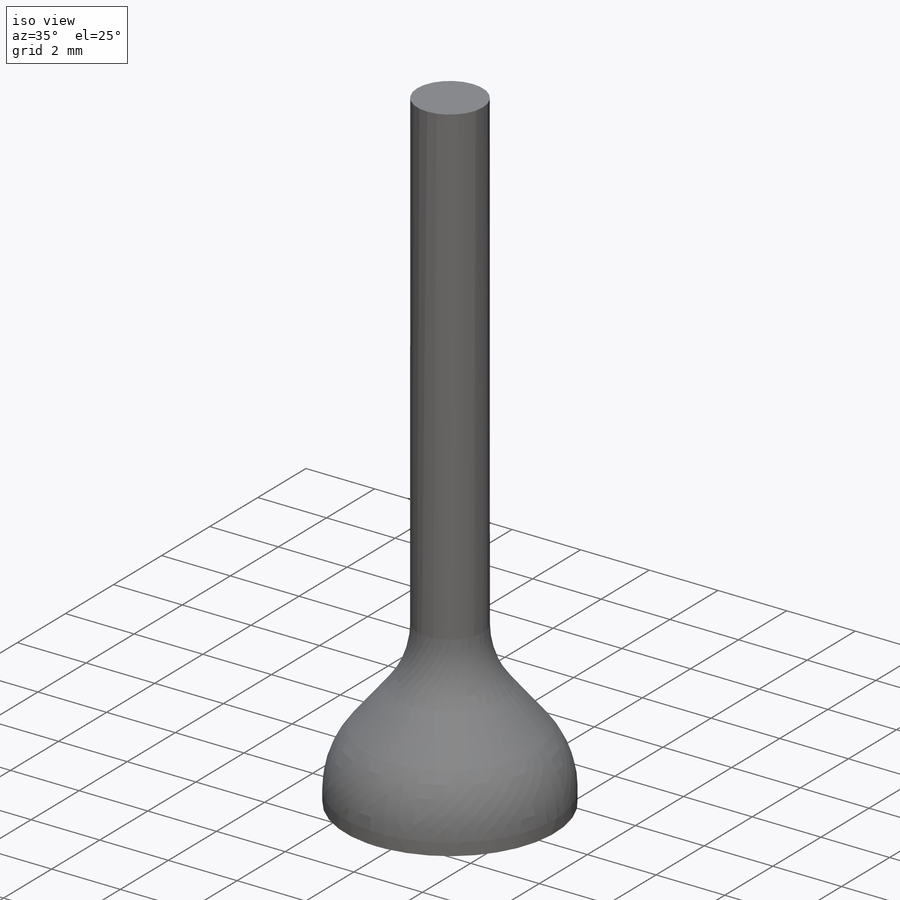
[diagram: iso view]
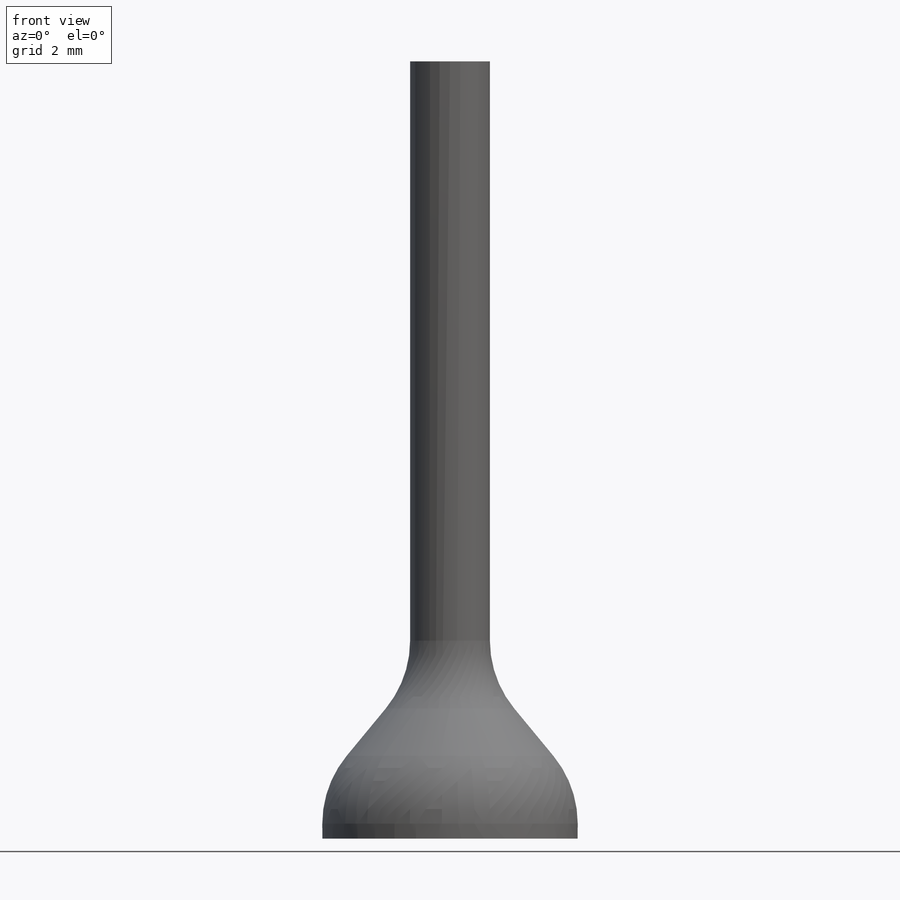
[diagram: front view]
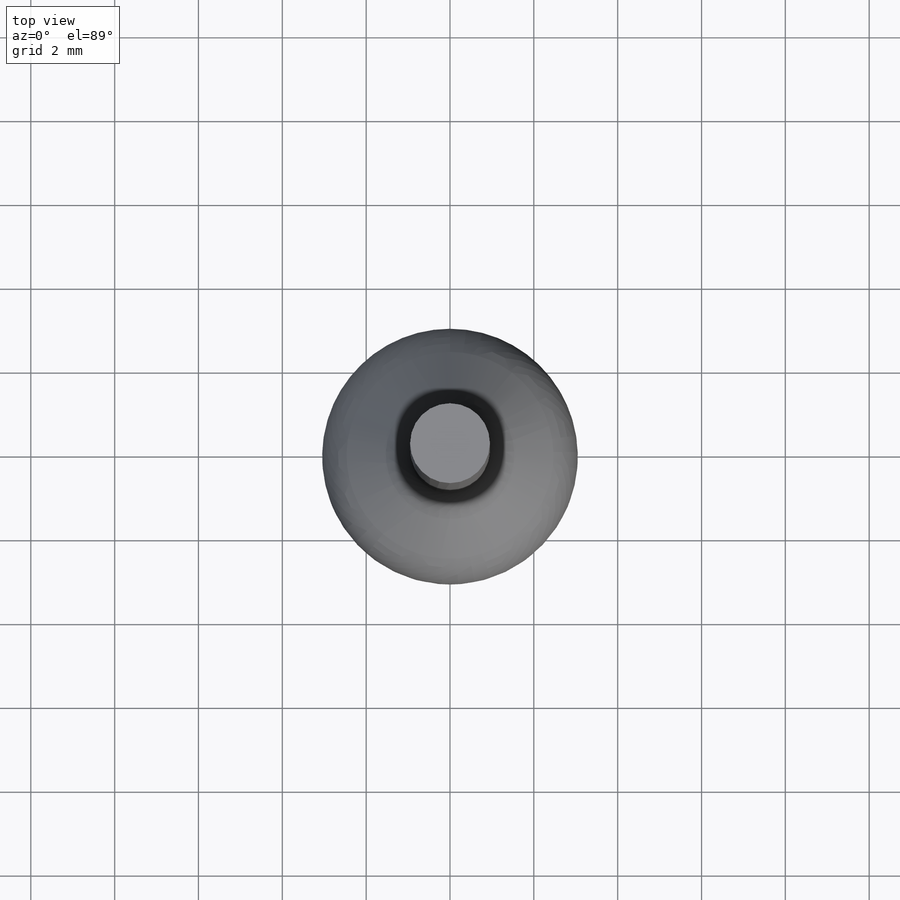
[diagram: top view]
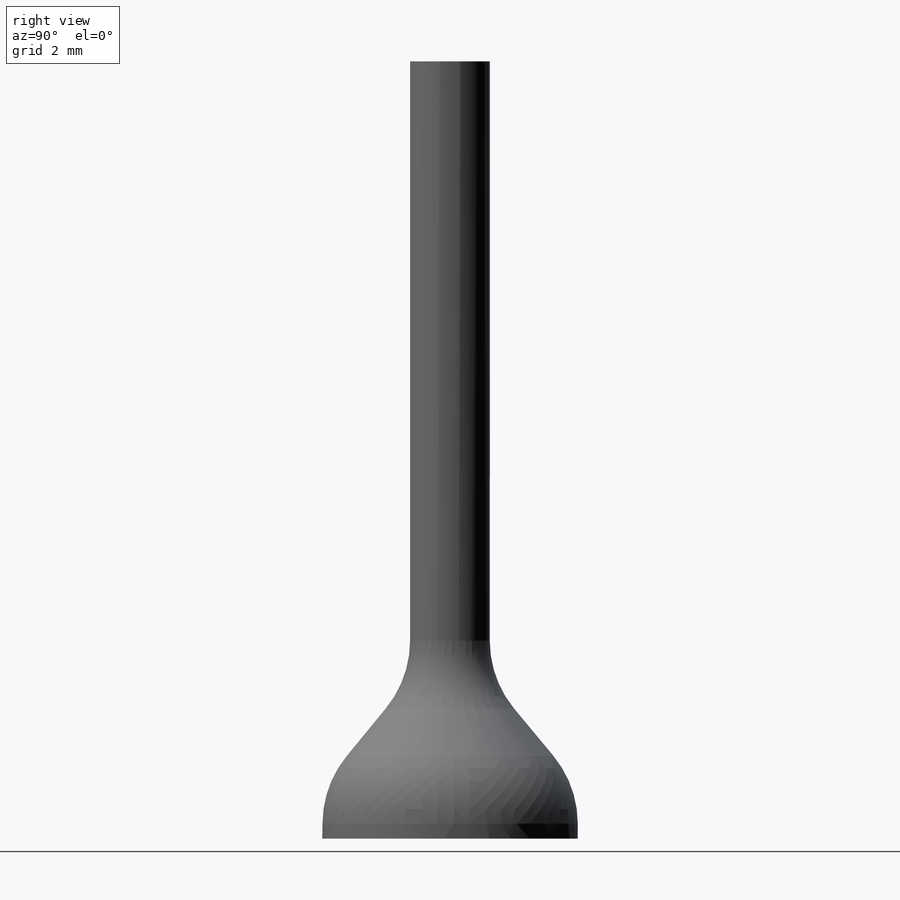
[diagram: right view]
SOLIDWORKS PART (.sldprt)
format: sldprt  version: not decoded by parser v0  size: 157,696 bytes
history: native  units: mm
features: sketch x3, extrude x2, material x1, plane x1, fillet x1 (+13 scaffold rows collapsed)
feature tree (21):
  scaffold x13  (default folders/planes/origin — collapsed)
  material  "Material <not specified>"
  sketch  "Sketch1"  dims[D1=~11.466038mm]
  extrude  "Boss-Extrude1"  Depth=1.27mm
  plane  "Plane1"  Offset=2.54mm
  sketch  "Sketch2"  dims[D1=~1.643114mm]
  sketch  "Sketch3"
  extrude  "Boss-Extrude2"  Depth=14.732mm
  fillet  "Fillet1"  Radius=2.54mm
decode coverage: 5 of 6 modeling features carry decoded parameters
note: ~ marks probable driven/reference dimensions
note: suppression state not decoded; provenance and decode notes live in map.json
